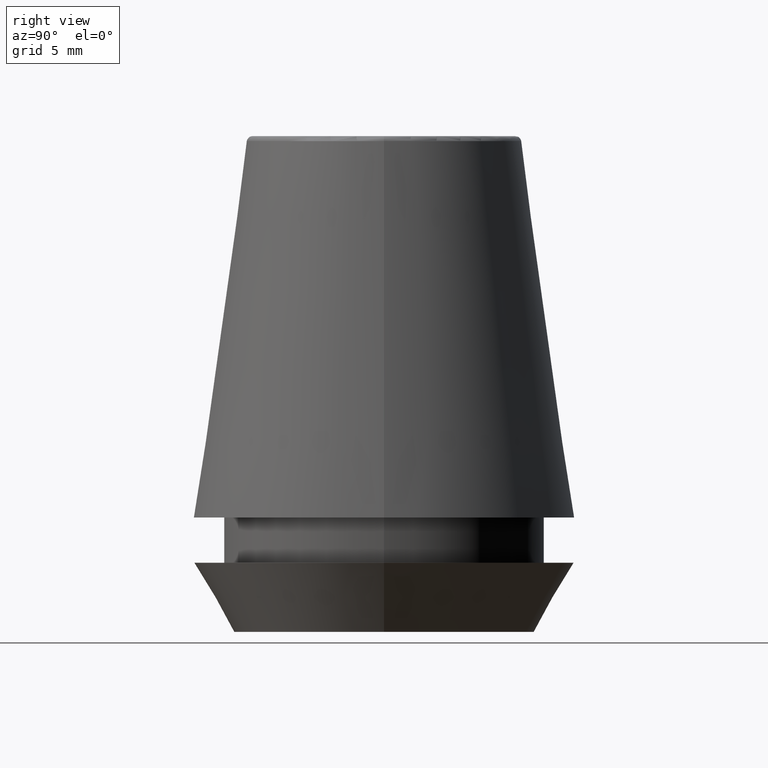
[diagram: clean part render]
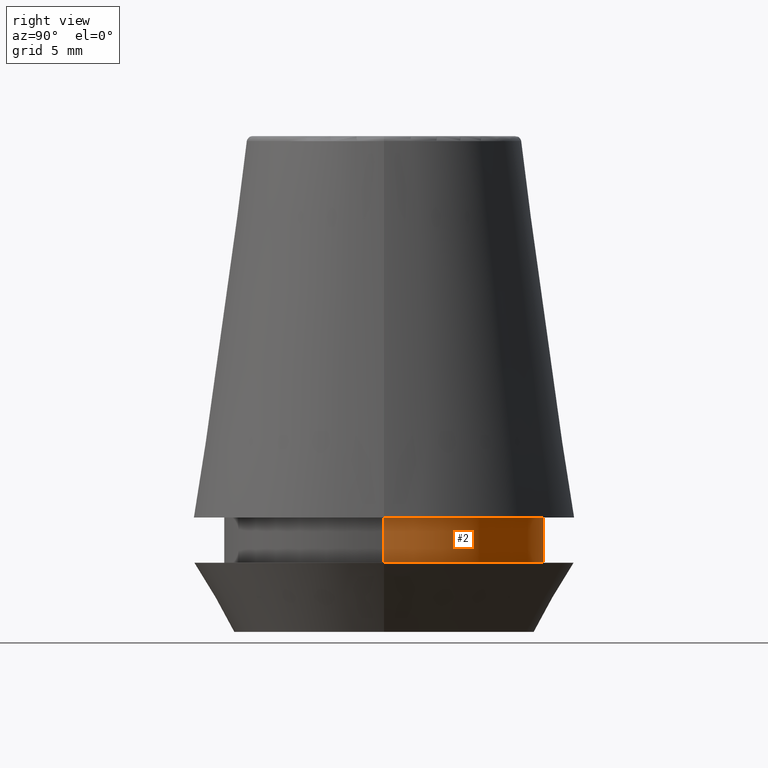
[diagram: same view with one face highlighted and labeled with its STEP entity id]
A machine part, right view. The second image highlights one B-rep face of the part: STEP entity #2.
In plain terms, the highlighted cylindrical surface (partial cylindrical patch) has radius 11 mm, axis along (-0, -0, 1).
Its self-contained STEP definition (entity closure, byte-faithful):
#2 = ADVANCED_FACE ( 'NONE', ( #251 ), #217, .T. ) ;
#5 = CARTESIAN_POINT ( 'NONE',  ( -11.00000000000000000, 1.347111479062088400E-015, 101.8074564848000400 ) ) ;
#9 = AXIS2_PLACEMENT_3D ( 'NONE', #45, #172, #259 ) ;
#10 = EDGE_CURVE ( 'NONE', #253, #356, #359, .T. ) ;
#25 = CARTESIAN_POINT ( 'NONE',  ( 11.00000000000000000, 0.0000000000000000000, 4.742050807568884500 ) ) ;
#28 = DIRECTION ( 'NONE',  ( 1.000000000000000000, 0.0000000000000000000, 0.0000000000000000000 ) ) ;
#29 = VECTOR ( 'NONE', #67, 1000.000000000000000 ) ;
#32 = AXIS2_PLACEMENT_3D ( 'NONE', #132, #258, #78 ) ;
#38 = EDGE_LOOP ( 'NONE', ( #346, #220, #321, #198 ) ) ;
#45 = CARTESIAN_POINT ( 'NONE',  ( 0.0000000000000000000, 0.0000000000000000000, 7.842050807568890400 ) ) ;
#67 = DIRECTION ( 'NONE',  ( -0.0000000000000000000, -0.0000000000000000000, 1.000000000000000000 ) ) ;
#78 = DIRECTION ( 'NONE',  ( 1.000000000000000000, 0.0000000000000000000, 0.0000000000000000000 ) ) ;
#86 = CARTESIAN_POINT ( 'NONE',  ( 11.00000000000000000, 0.0000000000000000000, 101.8074564848000400 ) ) ;
#88 = DIRECTION ( 'NONE',  ( -0.0000000000000000000, -0.0000000000000000000, 1.000000000000000000 ) ) ;
#95 = EDGE_CURVE ( 'NONE', #178, #253, #374, .T. ) ;
#96 = CARTESIAN_POINT ( 'NONE',  ( -11.00000000000000000, 1.347111479062088400E-015, 4.742050807568884500 ) ) ;
#103 = VECTOR ( 'NONE', #88, 1000.000000000000000 ) ;
#121 = EDGE_CURVE ( 'NONE', #178, #193, #255, .T. ) ;
#132 = CARTESIAN_POINT ( 'NONE',  ( 0.0000000000000000000, 0.0000000000000000000, 101.8074564848000400 ) ) ;
#148 = CARTESIAN_POINT ( 'NONE',  ( -11.00000000000000000, 1.347111479062088400E-015, 7.842050807568890400 ) ) ;
#169 = CARTESIAN_POINT ( 'NONE',  ( 11.00000000000000000, 0.0000000000000000000, 7.842050807568890400 ) ) ;
#172 = DIRECTION ( 'NONE',  ( -0.0000000000000000000, -0.0000000000000000000, 1.000000000000000000 ) ) ;
#175 = CARTESIAN_POINT ( 'NONE',  ( 0.0000000000000000000, 0.0000000000000000000, 4.742050807568884500 ) ) ;
#178 = VERTEX_POINT ( 'NONE', #25 ) ;
#193 = VERTEX_POINT ( 'NONE', #96 ) ;
#198 = ORIENTED_EDGE ( 'NONE', *, *, #95, .F. ) ;
#217 = CYLINDRICAL_SURFACE ( 'NONE', #32, 11.00000000000000000 ) ;
#220 = ORIENTED_EDGE ( 'NONE', *, *, #378, .T. ) ;
#251 = FACE_OUTER_BOUND ( 'NONE', #38, .T. ) ;
#253 = VERTEX_POINT ( 'NONE', #169 ) ;
#255 = CIRCLE ( 'NONE', #343, 11.00000000000000000 ) ;
#258 = DIRECTION ( 'NONE',  ( -0.0000000000000000000, -0.0000000000000000000, 1.000000000000000000 ) ) ;
#259 = DIRECTION ( 'NONE',  ( 1.000000000000000000, 0.0000000000000000000, 0.0000000000000000000 ) ) ;
#298 = DIRECTION ( 'NONE',  ( -0.0000000000000000000, -0.0000000000000000000, 1.000000000000000000 ) ) ;
#321 = ORIENTED_EDGE ( 'NONE', *, *, #10, .F. ) ;
#343 = AXIS2_PLACEMENT_3D ( 'NONE', #175, #298, #28 ) ;
#346 = ORIENTED_EDGE ( 'NONE', *, *, #121, .T. ) ;
#349 = LINE ( 'NONE', #5, #29 ) ;
#356 = VERTEX_POINT ( 'NONE', #148 ) ;
#359 = CIRCLE ( 'NONE', #9, 11.00000000000000000 ) ;
#374 = LINE ( 'NONE', #86, #103 ) ;
#378 = EDGE_CURVE ( 'NONE', #193, #356, #349, .T. ) ;